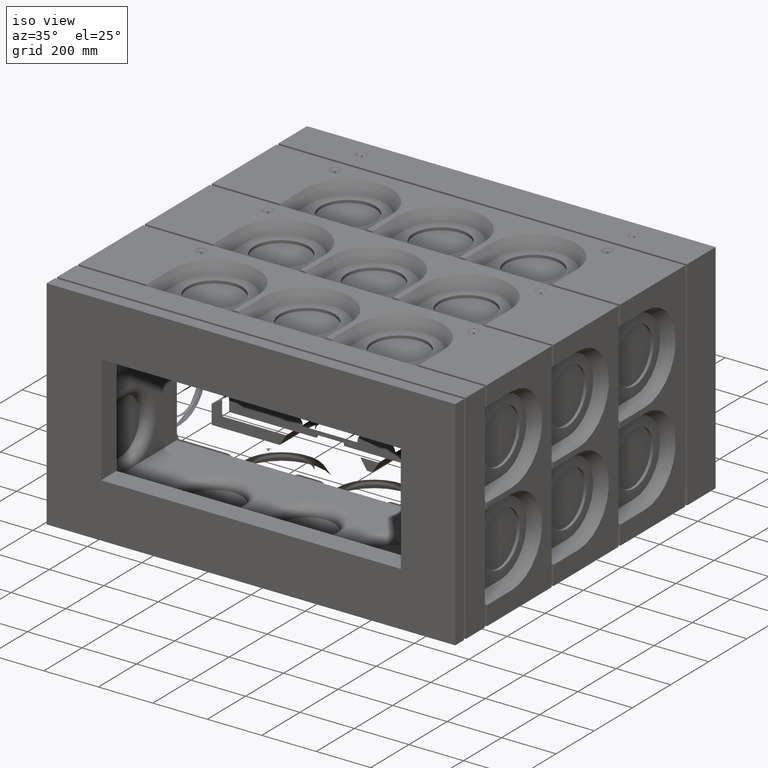
[diagram: clean part render]
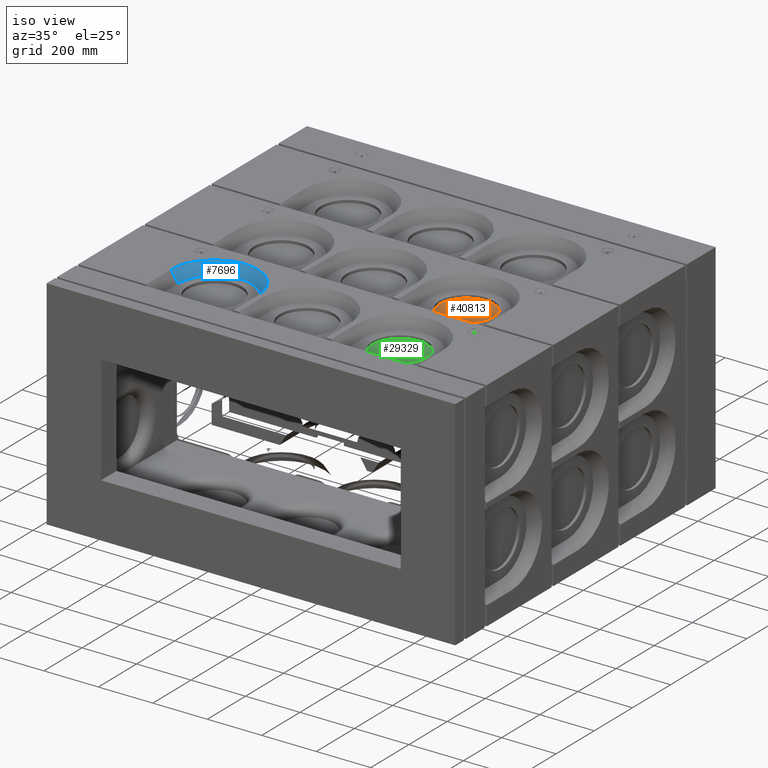
[diagram: same view with three faces highlighted in distinct colors, each labeled with its STEP entity id]
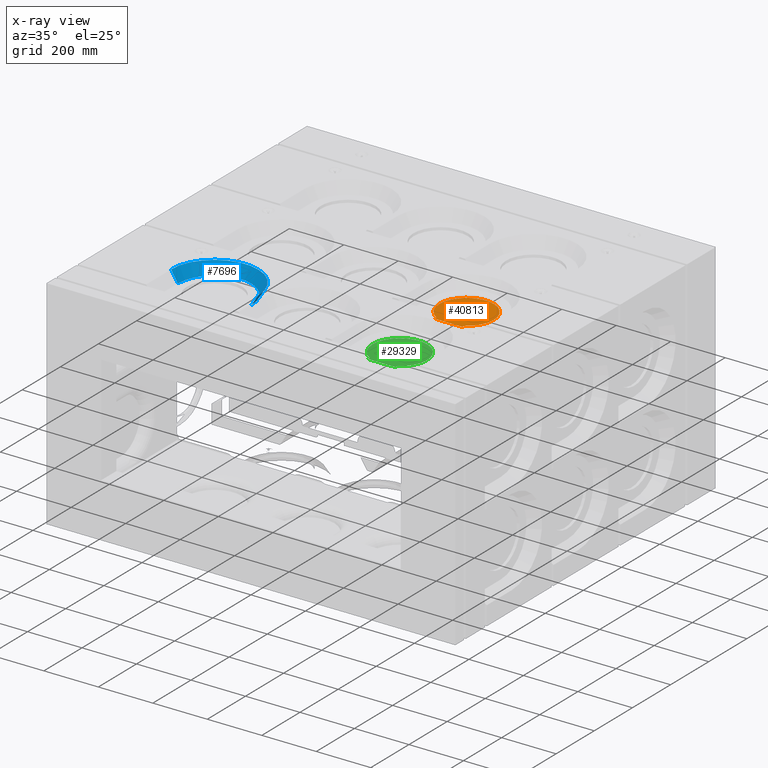
[diagram: x-ray of the same camera — body ghosted, the three highlighted faces saturated]
A machine part, iso view with three faces highlighted in distinct colors.
The next image is the same camera in x-ray (body ghosted, the three faces saturated) — at least one of them is partly hidden behind the body in this view.
Their STEP definitions:

[orange] entity #40813 — the highlighted planar face has unit normal (0, -0, 1).
#2733 = AXIS2_PLACEMENT_3D ( 'NONE', #26878, #20303, #40561 ) ;
#3631 = VERTEX_POINT ( 'NONE', #22221 ) ;
#5368 = CIRCLE ( 'NONE', #2733, 100.0000000000000284 ) ;
#5909 = CARTESIAN_POINT ( 'NONE',  ( 289.0000000000001137, 550.0000000000000000, 349.9999999999997726 ) ) ;
#8231 = ORIENTED_EDGE ( 'NONE', *, *, #28391, .T. ) ;
#9932 = LINE ( 'NONE', #34030, #13752 ) ;
#11643 = AXIS2_PLACEMENT_3D ( 'NONE', #17679, #21029, #17519 ) ;
#11891 = VERTEX_POINT ( 'NONE', #16289 ) ;
#13752 = VECTOR ( 'NONE', #44608, 1000.000000000000000 ) ;
#15776 = LINE ( 'NONE', #42102, #25091 ) ;
#16237 = DIRECTION ( 'NONE',  ( -1.881626355904905735E-48, -1.000000000000000000, -2.775557561562891351E-16 ) ) ;
#16289 = CARTESIAN_POINT ( 'NONE',  ( 391.0000000000000568, 558.9825599078884579, 349.9999999999997726 ) ) ;
#17395 = EDGE_CURVE ( 'NONE', #3631, #18151, #30278, .T. ) ;
#17519 = DIRECTION ( 'NONE',  ( 1.000000000000000000, 8.474091755303837753E-33, -1.734723475976808019E-17 ) ) ;
#17597 = ORIENTED_EDGE ( 'NONE', *, *, #31468, .T. ) ;
#17679 = CARTESIAN_POINT ( 'NONE',  ( 340.0000000000000000, 645.0000000000000000, 349.9999999999998295 ) ) ;
#18151 = VERTEX_POINT ( 'NONE', #5909 ) ;
#20303 = DIRECTION ( 'NONE',  ( 1.734723475976807711E-17, -4.996003610813204432E-16, 1.000000000000000000 ) ) ;
#21029 = DIRECTION ( 'NONE',  ( 1.734723475976808019E-17, -4.996003610813204432E-16, 1.000000000000000000 ) ) ;
#22221 = CARTESIAN_POINT ( 'NONE',  ( 289.0000000000001137, 558.9825599078883442, 349.9999999999997726 ) ) ;
#23319 = FACE_OUTER_BOUND ( 'NONE', #44468, .T. ) ;
#25091 = VECTOR ( 'NONE', #31981, 1000.000000000000000 ) ;
#26878 = CARTESIAN_POINT ( 'NONE',  ( 340.0000000000000000, 645.0000000000000000, 349.9999999999998295 ) ) ;
#27180 = CARTESIAN_POINT ( 'NONE',  ( 289.0000000000001137, 558.9825599078883442, 349.9999999999997726 ) ) ;
#28391 = EDGE_CURVE ( 'NONE', #18151, #32233, #15776, .T. ) ;
#28955 = ORIENTED_EDGE ( 'NONE', *, *, #36321, .T. ) ;
#29964 = CARTESIAN_POINT ( 'NONE',  ( 391.0000000000000568, 550.0000000000000000, 349.9999999999997726 ) ) ;
#30278 = LINE ( 'NONE', #27180, #32464 ) ;
#31320 = PLANE ( 'NONE',  #11643 ) ;
#31468 = EDGE_CURVE ( 'NONE', #32233, #11891, #9932, .T. ) ;
#31981 = DIRECTION ( 'NONE',  ( 1.000000000000000000, 8.474091755303837753E-33, -1.734723475976808019E-17 ) ) ;
#32233 = VERTEX_POINT ( 'NONE', #29964 ) ;
#32464 = VECTOR ( 'NONE', #16237, 1000.000000000000000 ) ;
#34030 = CARTESIAN_POINT ( 'NONE',  ( 391.0000000000000568, 558.9825599078884579, 349.9999999999997726 ) ) ;
#36321 = EDGE_CURVE ( 'NONE', #11891, #3631, #5368, .T. ) ;
#37249 = ORIENTED_EDGE ( 'NONE', *, *, #17395, .T. ) ;
#40561 = DIRECTION ( 'NONE',  ( 1.000000000000000000, 0.0000000000000000000, 0.0000000000000000000 ) ) ;
#40813 = ADVANCED_FACE ( 'NONE', ( #23319 ), #31320, .T. ) ;
#42102 = CARTESIAN_POINT ( 'NONE',  ( 711.5000000000001137, 550.0000000000000000, 349.9999999999998295 ) ) ;
#44468 = EDGE_LOOP ( 'NONE', ( #8231, #17597, #28955, #37249 ) ) ;
#44608 = DIRECTION ( 'NONE',  ( 1.881626355904905735E-48, 1.000000000000000000, 2.775557561562891351E-16 ) ) ;

[blue] entity #7696 — the highlighted conical surface has half-angle 32 deg.
#736 = FACE_OUTER_BOUND ( 'NONE', #9606, .T. ) ;
#1889 = VECTOR ( 'NONE', #11461, 1000.000000000000114 ) ;
#2109 = CARTESIAN_POINT ( 'NONE',  ( -500.0000000000001137, 295.0000000000000000, 399.9999999999997158 ) ) ;
#3602 = CARTESIAN_POINT ( 'NONE',  ( -475.0052259236269379, 295.0000000000000568, 359.9999999999997158 ) ) ;
#7696 = ADVANCED_FACE ( 'NONE', ( #736 ), #18647, .F. ) ;
#9503 = CARTESIAN_POINT ( 'NONE',  ( -180.0000000000000568, 295.0000000000000568, 399.9999999999997158 ) ) ;
#9606 = EDGE_LOOP ( 'NONE', ( #15228, #24063, #12261, #43206 ) ) ;
#10702 = CARTESIAN_POINT ( 'NONE',  ( -500.0000000000001137, 295.0000000000000568, 399.9999999999997726 ) ) ;
#10707 = VERTEX_POINT ( 'NONE', #39883 ) ;
#11461 = DIRECTION ( 'NONE',  ( -0.5299192642332060110, -3.317587962503065324E-16, 0.8480480961564252906 ) ) ;
#11887 = EDGE_CURVE ( 'NONE', #27152, #25525, #29594, .T. ) ;
#12261 = ORIENTED_EDGE ( 'NONE', *, *, #43390, .F. ) ;
#13155 = EDGE_CURVE ( 'NONE', #10707, #27152, #23038, .T. ) ;
#13290 = CARTESIAN_POINT ( 'NONE',  ( -339.9999999999999432, 295.0000000000000000, 399.9999999999997158 ) ) ;
#15228 = ORIENTED_EDGE ( 'NONE', *, *, #11887, .T. ) ;
#15345 = DIRECTION ( 'NONE',  ( 1.734723475976807711E-17, -4.996003610813204432E-16, 1.000000000000000000 ) ) ;
#16016 = AXIS2_PLACEMENT_3D ( 'NONE', #25405, #15345, #39374 ) ;
#17958 = AXIS2_PLACEMENT_3D ( 'NONE', #44262, #37178, #40611 ) ;
#18647 = CONICAL_SURFACE ( 'NONE', #17958, 160.0000000000000284, 0.5585053606381866764 ) ;
#21639 = CIRCLE ( 'NONE', #16016, 135.0052259236268526 ) ;
#23038 = LINE ( 'NONE', #9503, #31025 ) ;
#24063 = ORIENTED_EDGE ( 'NONE', *, *, #30725, .F. ) ;
#24871 = CARTESIAN_POINT ( 'NONE',  ( -180.0000000000000568, 295.0000000000000568, 399.9999999999997158 ) ) ;
#25405 = CARTESIAN_POINT ( 'NONE',  ( -339.9999999999999432, 295.0000000000000568, 359.9999999999997158 ) ) ;
#25525 = VERTEX_POINT ( 'NONE', #2109 ) ;
#27152 = VERTEX_POINT ( 'NONE', #24871 ) ;
#27741 = LINE ( 'NONE', #10702, #1889 ) ;
#28758 = VERTEX_POINT ( 'NONE', #3602 ) ;
#29594 = CIRCLE ( 'NONE', #44383, 160.0000000000000284 ) ;
#30407 = DIRECTION ( 'NONE',  ( 0.5299192642332060110, -1.883537077164254358E-16, 0.8480480961564252906 ) ) ;
#30725 = EDGE_CURVE ( 'NONE', #28758, #25525, #27741, .T. ) ;
#30972 = DIRECTION ( 'NONE',  ( 1.000000000000000000, 0.0000000000000000000, 0.0000000000000000000 ) ) ;
#31025 = VECTOR ( 'NONE', #30407, 1000.000000000000114 ) ;
#37178 = DIRECTION ( 'NONE',  ( 1.734723475976807711E-17, -4.996003610813204432E-16, 1.000000000000000000 ) ) ;
#39374 = DIRECTION ( 'NONE',  ( 1.000000000000000000, 0.0000000000000000000, 0.0000000000000000000 ) ) ;
#39883 = CARTESIAN_POINT ( 'NONE',  ( -204.9947740763732327, 295.0000000000000568, 359.9999999999997158 ) ) ;
#40611 = DIRECTION ( 'NONE',  ( 1.000000000000000000, 0.0000000000000000000, 0.0000000000000000000 ) ) ;
#43206 = ORIENTED_EDGE ( 'NONE', *, *, #13155, .T. ) ;
#43390 = EDGE_CURVE ( 'NONE', #10707, #28758, #21639, .T. ) ;
#44262 = CARTESIAN_POINT ( 'NONE',  ( -339.9999999999999432, 295.0000000000000000, 399.9999999999997158 ) ) ;
#44285 = DIRECTION ( 'NONE',  ( 1.734723475976807711E-17, -4.996003610813204432E-16, 1.000000000000000000 ) ) ;
#44383 = AXIS2_PLACEMENT_3D ( 'NONE', #13290, #44285, #30972 ) ;

[green] entity #29329 — the highlighted planar face has unit normal (0, -0, 1).
#617 = CARTESIAN_POINT ( 'NONE',  ( 391.0000000000000568, 200.0000000000000000, 349.9999999999996589 ) ) ;
#1480 = CARTESIAN_POINT ( 'NONE',  ( 289.0000000000001137, 200.0000000000000000, 349.9999999999996589 ) ) ;
#2590 = DIRECTION ( 'NONE',  ( 1.000000000000000000, 8.474091755303837753E-33, -1.734723475976808019E-17 ) ) ;
#2793 = VERTEX_POINT ( 'NONE', #1480 ) ;
#4544 = AXIS2_PLACEMENT_3D ( 'NONE', #40421, #43639, #2590 ) ;
#7290 = LINE ( 'NONE', #34507, #35838 ) ;
#9697 = EDGE_CURVE ( 'NONE', #30275, #2793, #20319, .T. ) ;
#12310 = AXIS2_PLACEMENT_3D ( 'NONE', #44530, #23916, #41178 ) ;
#16417 = FACE_OUTER_BOUND ( 'NONE', #39314, .T. ) ;
#18022 = CARTESIAN_POINT ( 'NONE',  ( 289.0000000000001137, 208.9825599078884295, 349.9999999999996589 ) ) ;
#18324 = VERTEX_POINT ( 'NONE', #31854 ) ;
#20319 = LINE ( 'NONE', #32348, #38050 ) ;
#20322 = ORIENTED_EDGE ( 'NONE', *, *, #9697, .T. ) ;
#20357 = ORIENTED_EDGE ( 'NONE', *, *, #29798, .T. ) ;
#20743 = EDGE_CURVE ( 'NONE', #18324, #30275, #33902, .T. ) ;
#21191 = ORIENTED_EDGE ( 'NONE', *, *, #20743, .T. ) ;
#22300 = VECTOR ( 'NONE', #43752, 1000.000000000000000 ) ;
#22695 = EDGE_CURVE ( 'NONE', #27548, #18324, #7290, .T. ) ;
#23297 = CARTESIAN_POINT ( 'NONE',  ( 711.5000000000001137, 200.0000000000000000, 349.9999999999997158 ) ) ;
#23916 = DIRECTION ( 'NONE',  ( 1.734723475976807711E-17, -4.996003610813204432E-16, 1.000000000000000000 ) ) ;
#27548 = VERTEX_POINT ( 'NONE', #617 ) ;
#29329 = ADVANCED_FACE ( 'NONE', ( #16417 ), #36981, .T. ) ;
#29798 = EDGE_CURVE ( 'NONE', #2793, #27548, #31918, .T. ) ;
#30275 = VERTEX_POINT ( 'NONE', #18022 ) ;
#31854 = CARTESIAN_POINT ( 'NONE',  ( 391.0000000000000568, 208.9825599078884579, 349.9999999999996589 ) ) ;
#31918 = LINE ( 'NONE', #23297, #22300 ) ;
#32348 = CARTESIAN_POINT ( 'NONE',  ( 289.0000000000001137, 208.9825599078884295, 349.9999999999996589 ) ) ;
#33902 = CIRCLE ( 'NONE', #12310, 100.0000000000000284 ) ;
#34507 = CARTESIAN_POINT ( 'NONE',  ( 391.0000000000000568, 208.9825599078884579, 349.9999999999996589 ) ) ;
#35838 = VECTOR ( 'NONE', #41465, 1000.000000000000000 ) ;
#36981 = PLANE ( 'NONE',  #4544 ) ;
#38050 = VECTOR ( 'NONE', #42744, 1000.000000000000000 ) ;
#39314 = EDGE_LOOP ( 'NONE', ( #20357, #39451, #21191, #20322 ) ) ;
#39451 = ORIENTED_EDGE ( 'NONE', *, *, #22695, .T. ) ;
#40421 = CARTESIAN_POINT ( 'NONE',  ( 340.0000000000000000, 295.0000000000000568, 349.9999999999997158 ) ) ;
#41178 = DIRECTION ( 'NONE',  ( 1.000000000000000000, 0.0000000000000000000, 0.0000000000000000000 ) ) ;
#41465 = DIRECTION ( 'NONE',  ( 1.881626355904905735E-48, 1.000000000000000000, 2.775557561562891351E-16 ) ) ;
#42744 = DIRECTION ( 'NONE',  ( -1.881626355904905735E-48, -1.000000000000000000, -2.775557561562891351E-16 ) ) ;
#43639 = DIRECTION ( 'NONE',  ( 1.734723475976808019E-17, -4.996003610813204432E-16, 1.000000000000000000 ) ) ;
#43752 = DIRECTION ( 'NONE',  ( 1.000000000000000000, 8.474091755303837753E-33, -1.734723475976808019E-17 ) ) ;
#44530 = CARTESIAN_POINT ( 'NONE',  ( 340.0000000000000000, 295.0000000000000568, 349.9999999999997158 ) ) ;